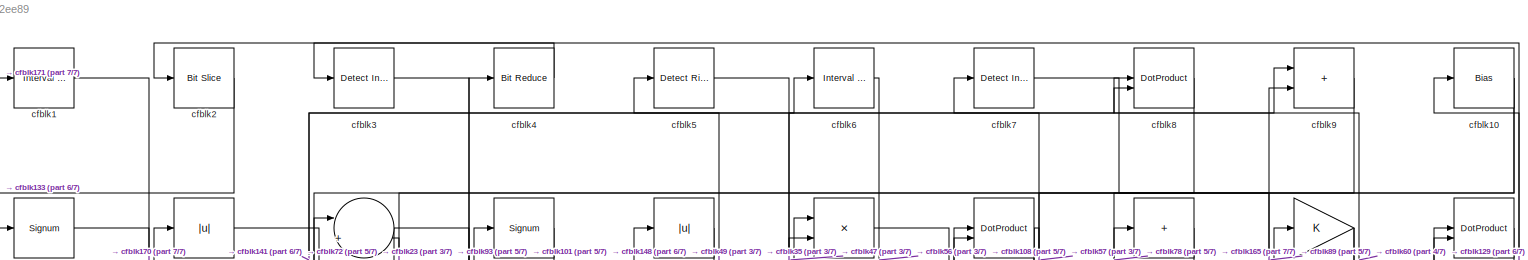
[diagram: root canvas - part 1/7, full width, top band]
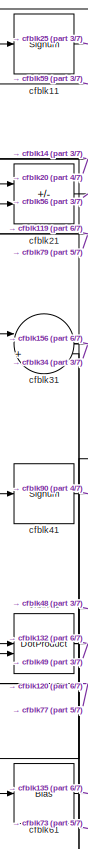
[diagram: root canvas - part 2/7, top left region]
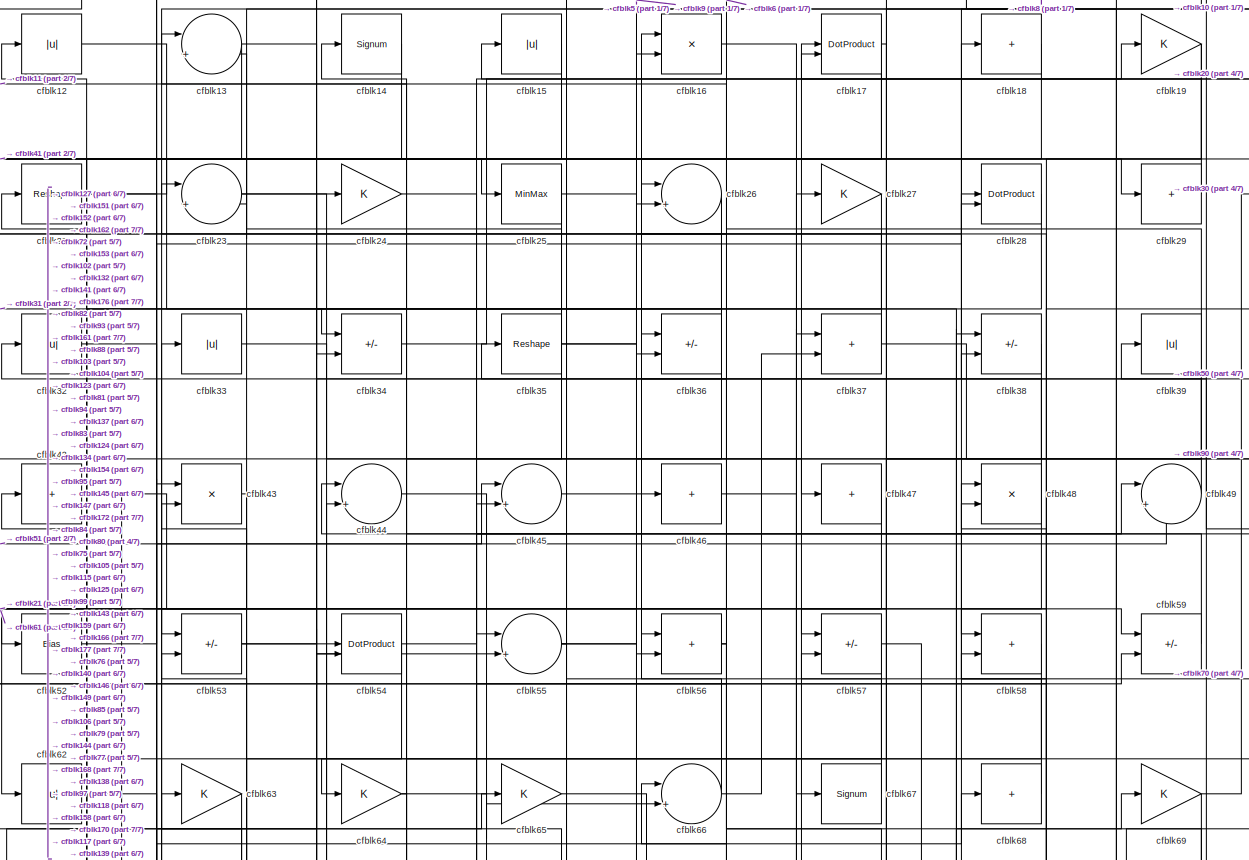
[diagram: root canvas - part 3/7, full width, top band]
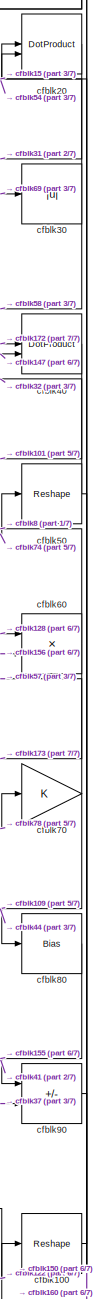
[diagram: root canvas - part 4/7, top right region]
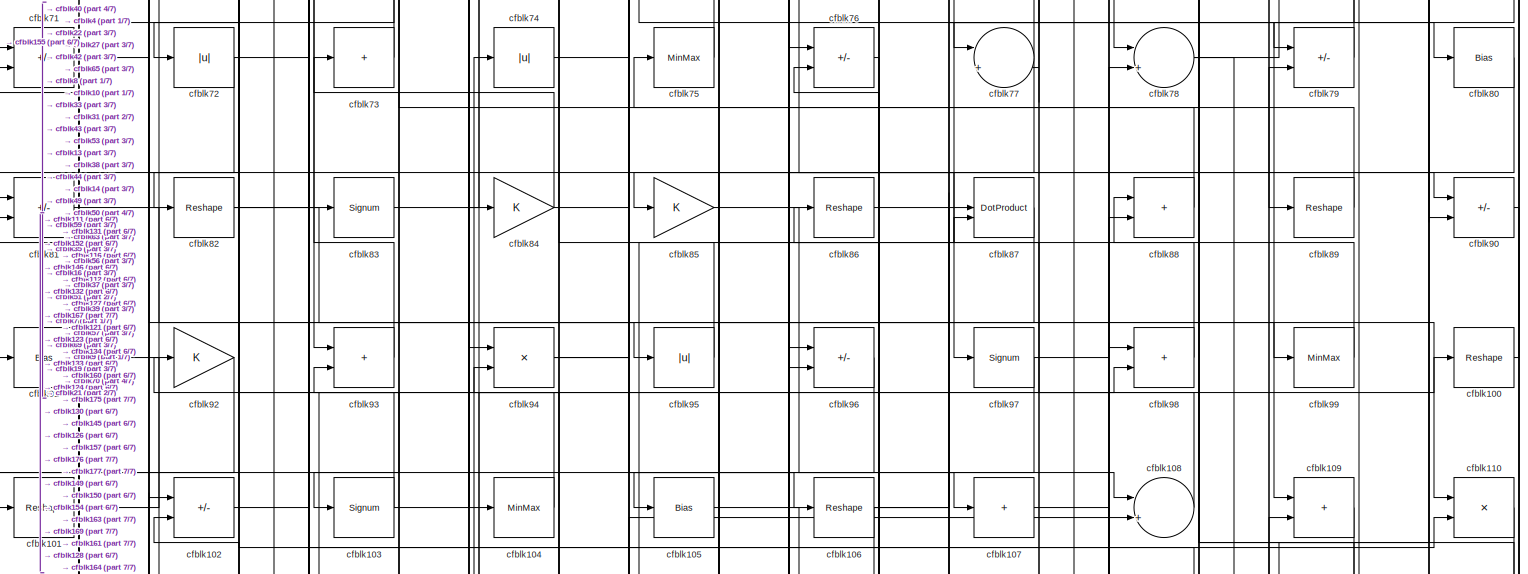
[diagram: root canvas - part 5/7, full width, middle band]
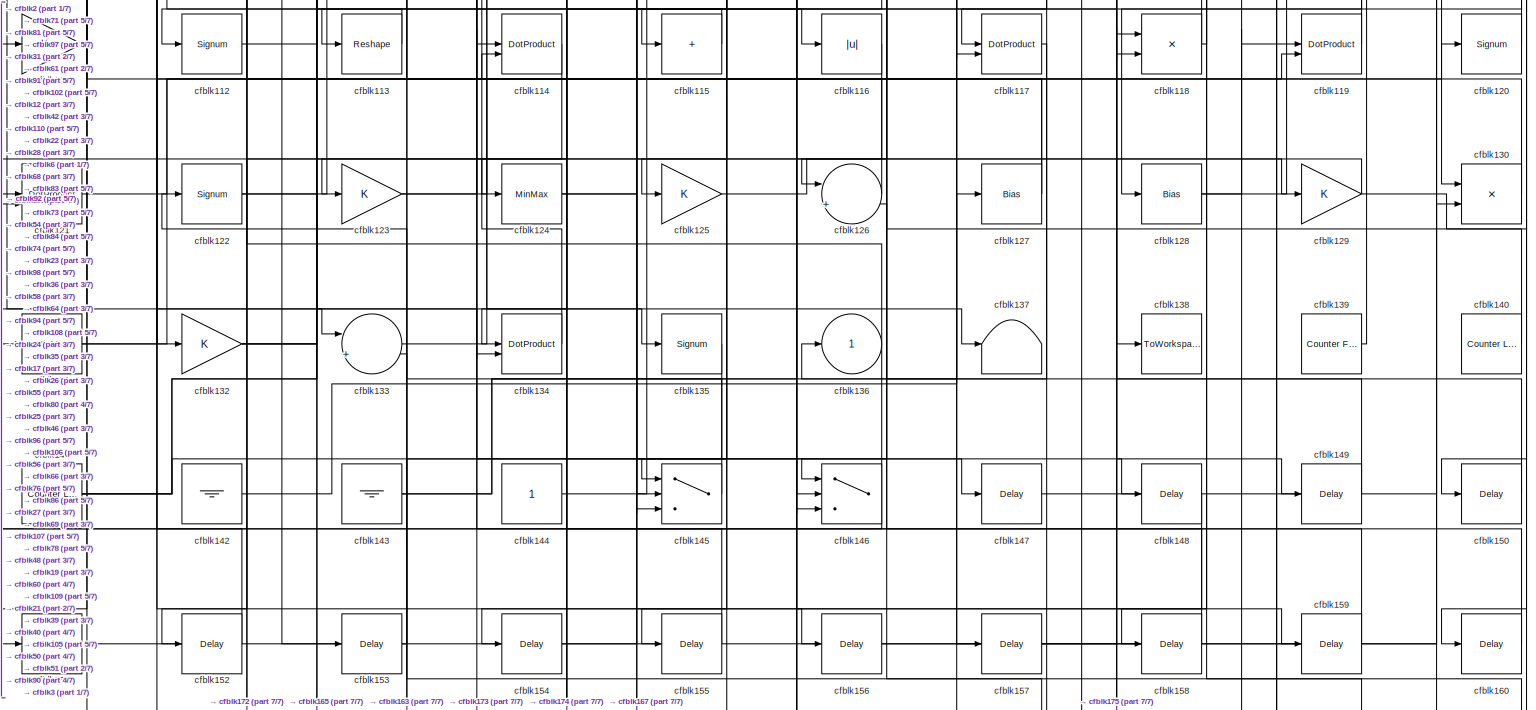
[diagram: root canvas - part 6/7, full width, bottom band]
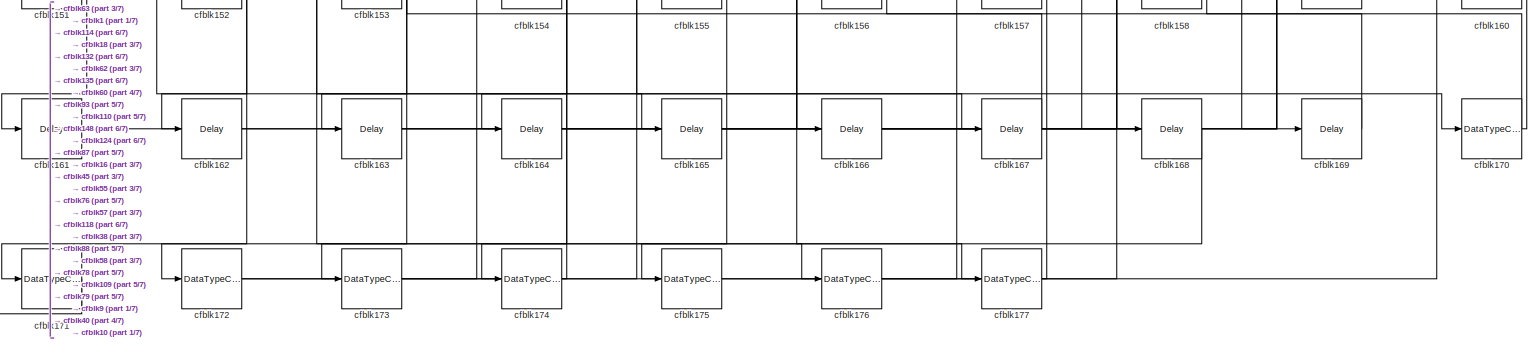
[diagram: root canvas - part 7/7, full width, bottom band]
MODEL slx_abfb5212ee89
KIND model
CONFIG AbsTol = auto
CONFIG EnableMultiTasking = off
CONFIG FixedStep = auto
CONFIG MaxStep = auto
CONFIG MinStep = auto
CONFIG RelTol = 1e-3
CONFIG SampleTimeConstraint = Unconstrained
CONFIG SolverName = VariableStepAuto
CONFIG StartTime = 0.0
CONFIG StopTime = 10.0
BLOCK [Reference] cfblk1  REF=hdlsllib/Logic and Bit
Operations/Interval Test
  SourceBlock = hdlsllib/Logic and Bit\nOperations/Interval Test
  SourceType = Interval Test
BLOCK [Bias] cfblk10
  Bias = 0.0
  SaturateOnIntegerOverflow = off
BLOCK [Reshape] cfblk100
BLOCK [Reshape] cfblk101
BLOCK [Sum] cfblk102
  IconShape = rectangular
  Inputs = +-
BLOCK [Signum] cfblk103
BLOCK [MinMax] cfblk104
BLOCK [Bias] cfblk105
  Bias = 0.0
  SaturateOnIntegerOverflow = off
BLOCK [Reshape] cfblk106
BLOCK [Sum] cfblk107
  IconShape = rectangular
  Inputs = +
BLOCK [Sum] cfblk108
  Inputs = |++
BLOCK [Sum] cfblk109
  IconShape = rectangular
BLOCK [Signum] cfblk11
BLOCK [Product] cfblk110
  Inputs = */
  RndMeth = Zero
  SaturateOnIntegerOverflow = on
BLOCK [Gain] cfblk111
BLOCK [Signum] cfblk112
BLOCK [Reshape] cfblk113
BLOCK [DotProduct] cfblk114
  OutDataTypeStr = Inherit: Inherit via internal rule
BLOCK [Sum] cfblk115
  IconShape = rectangular
  Inputs = +
BLOCK [Abs] cfblk116
  SaturateOnIntegerOverflow = off
BLOCK [DotProduct] cfblk117
  OutDataTypeStr = Inherit: Inherit via internal rule
BLOCK [Product] cfblk118
  Inputs = */
  RndMeth = Zero
  SaturateOnIntegerOverflow = on
BLOCK [DotProduct] cfblk119
  OutDataTypeStr = Inherit: Inherit via internal rule
BLOCK [Abs] cfblk12
  SaturateOnIntegerOverflow = off
BLOCK [Signum] cfblk120
BLOCK [DotProduct] cfblk121
  OutDataTypeStr = Inherit: Inherit via internal rule
BLOCK [Signum] cfblk122
BLOCK [Gain] cfblk123
BLOCK [MinMax] cfblk124
BLOCK [Gain] cfblk125
BLOCK [Sum] cfblk126
  Inputs = |++
BLOCK [Bias] cfblk127
  Bias = 0.0
  SaturateOnIntegerOverflow = off
BLOCK [Bias] cfblk128
  Bias = 0.0
  SaturateOnIntegerOverflow = off
BLOCK [Gain] cfblk129
BLOCK [Sum] cfblk13
  Inputs = |++
BLOCK [Product] cfblk130
  Inputs = */
  RndMeth = Zero
  SaturateOnIntegerOverflow = on
BLOCK [MinMax] cfblk131
BLOCK [Gain] cfblk132
BLOCK [Sum] cfblk133
  Inputs = |++
BLOCK [DotProduct] cfblk134
  OutDataTypeStr = Inherit: Inherit via internal rule
BLOCK [Signum] cfblk135
BLOCK [Outport] cfblk136
  VectorParamsAs1DForOutWhenUnconnected = off
BLOCK [Terminator] cfblk137
BLOCK [ToWorkspace] cfblk138
  MaxDataPoints = inf
  SampleTime = -1
  SaveFormat = Timeseries
  VariableName = simout
BLOCK [Reference] cfblk139  REF=hdlsllib/Sources/Counter
Free-Running
  SourceBlock = hdlsllib/Sources/Counter\nFree-Running
  SourceType = Counter Free-Running
BLOCK [Signum] cfblk14
BLOCK [Reference] cfblk140  REF=hdlsllib/Sources/Counter
Limited
  SourceBlock = hdlsllib/Sources/Counter\nLimited
  SourceType = Counter Limited
BLOCK [Reference] cfblk141  REF=hdlsllib/Sources/Counter
Limited
  SourceBlock = hdlsllib/Sources/Counter\nLimited
  SourceType = Counter Limited
BLOCK [Ground] cfblk142
BLOCK [Ground] cfblk143
BLOCK [Constant] cfblk144
  SampleTime = -1
BLOCK [Switch] cfblk145
  InputSameDT = off
  SaturateOnIntegerOverflow = off
BLOCK [Switch] cfblk146
  InputSameDT = off
  SaturateOnIntegerOverflow = off
BLOCK [Delay] cfblk147
  InputPortMap = u0
  SampleTime = 1
BLOCK [Delay] cfblk148
  InputPortMap = u0
  SampleTime = 1
BLOCK [Delay] cfblk149
  InputPortMap = u0
  SampleTime = 1
BLOCK [Abs] cfblk15
  SaturateOnIntegerOverflow = off
BLOCK [Delay] cfblk150
  InputPortMap = u0
  SampleTime = 1
BLOCK [Delay] cfblk151
  InputPortMap = u0
  SampleTime = 1
BLOCK [Delay] cfblk152
  InputPortMap = u0
  SampleTime = 1
BLOCK [Delay] cfblk153
  InputPortMap = u0
  SampleTime = 1
BLOCK [Delay] cfblk154
  InputPortMap = u0
  SampleTime = 1
BLOCK [Delay] cfblk155
  InputPortMap = u0
  SampleTime = 1
BLOCK [Delay] cfblk156
  InputPortMap = u0
  SampleTime = 1
BLOCK [Delay] cfblk157
  InputPortMap = u0
  SampleTime = 1
BLOCK [Delay] cfblk158
  InputPortMap = u0
  SampleTime = 1
BLOCK [Delay] cfblk159
  InputPortMap = u0
  SampleTime = 1
BLOCK [Product] cfblk16
  Inputs = */
  RndMeth = Zero
  SaturateOnIntegerOverflow = on
BLOCK [Delay] cfblk160
  InputPortMap = u0
  SampleTime = 1
BLOCK [Delay] cfblk161
  InputPortMap = u0
  SampleTime = 1
BLOCK [Delay] cfblk162
  InputPortMap = u0
  SampleTime = 1
BLOCK [Delay] cfblk163
  InputPortMap = u0
  SampleTime = 1
BLOCK [Delay] cfblk164
  InputPortMap = u0
  SampleTime = 1
BLOCK [Delay] cfblk165
  InputPortMap = u0
  SampleTime = 1
BLOCK [Delay] cfblk166
  InputPortMap = u0
  SampleTime = 1
BLOCK [Delay] cfblk167
  InputPortMap = u0
  SampleTime = 1
BLOCK [Delay] cfblk168
  InputPortMap = u0
  SampleTime = 1
BLOCK [Delay] cfblk169
  InputPortMap = u0
  SampleTime = 1
BLOCK [DotProduct] cfblk17
  OutDataTypeStr = Inherit: Inherit via internal rule
BLOCK [DataTypeConversion] cfblk170
  RndMeth = Floor
  SaturateOnIntegerOverflow = off
BLOCK [DataTypeConversion] cfblk171
  OutDataTypeStr = uint8
  RndMeth = Floor
  SaturateOnIntegerOverflow = off
BLOCK [DataTypeConversion] cfblk172
  RndMeth = Floor
  SaturateOnIntegerOverflow = off
BLOCK [DataTypeConversion] cfblk173
  OutDataTypeStr = uint8
  RndMeth = Floor
  SaturateOnIntegerOverflow = off
BLOCK [DataTypeConversion] cfblk174
  OutDataTypeStr = uint8
  RndMeth = Floor
  SaturateOnIntegerOverflow = off
BLOCK [DataTypeConversion] cfblk175
  OutDataTypeStr = uint8
  RndMeth = Floor
  SaturateOnIntegerOverflow = off
BLOCK [DataTypeConversion] cfblk176
  OutDataTypeStr = uint8
  RndMeth = Floor
  SaturateOnIntegerOverflow = off
BLOCK [DataTypeConversion] cfblk177
  OutDataTypeStr = uint8
  RndMeth = Floor
  SaturateOnIntegerOverflow = off
BLOCK [Sum] cfblk18
  IconShape = rectangular
  Inputs = +
BLOCK [Gain] cfblk19
BLOCK [Reference] cfblk2  REF=hdlsllib/Logic and Bit
Operations/Bit Slice
  SourceBlock = hdlsllib/Logic and Bit\nOperations/Bit Slice
  SourceType = Bit Slice
BLOCK [DotProduct] cfblk20
  OutDataTypeStr = Inherit: Inherit via internal rule
BLOCK [Sum] cfblk21
  IconShape = rectangular
  Inputs = +-
BLOCK [Reshape] cfblk22
BLOCK [Sum] cfblk23
  Inputs = |++
BLOCK [Gain] cfblk24
BLOCK [MinMax] cfblk25
BLOCK [Sum] cfblk26
  Inputs = |++
BLOCK [Gain] cfblk27
BLOCK [DotProduct] cfblk28
  OutDataTypeStr = Inherit: Inherit via internal rule
BLOCK [Sum] cfblk29
  IconShape = rectangular
  Inputs = +
BLOCK [Reference] cfblk3  REF=simulink/Logic and Bit
Operations/Detect
Increase
  LibrarySourceBlock = hdlsllib/Logic and Bit\nOperations/Detect\nIncrease
  SourceBlock = simulink/Logic and Bit\nOperations/Detect\nIncrease
  SourceType = Detect Increase
BLOCK [Abs] cfblk30
  SaturateOnIntegerOverflow = off
BLOCK [Sum] cfblk31
  Inputs = |++
BLOCK [Abs] cfblk32
  SaturateOnIntegerOverflow = off
BLOCK [Abs] cfblk33
  SaturateOnIntegerOverflow = off
BLOCK [Sum] cfblk34
  IconShape = rectangular
  Inputs = +-
BLOCK [Reshape] cfblk35
BLOCK [Sum] cfblk36
  IconShape = rectangular
  Inputs = +-
BLOCK [Sum] cfblk37
  IconShape = rectangular
BLOCK [Sum] cfblk38
  IconShape = rectangular
  Inputs = +-
BLOCK [Abs] cfblk39
  SaturateOnIntegerOverflow = off
BLOCK [Reference] cfblk4  REF=hdlsllib/Logic and Bit
Operations/Bit Reduce
  SourceBlock = hdlsllib/Logic and Bit\nOperations/Bit Reduce
  SourceType = Bit Reduce
BLOCK [DotProduct] cfblk40
  OutDataTypeStr = Inherit: Inherit via internal rule
BLOCK [Signum] cfblk41
BLOCK [Sum] cfblk42
  IconShape = rectangular
  Inputs = +
BLOCK [Product] cfblk43
  Inputs = */
  RndMeth = Zero
  SaturateOnIntegerOverflow = on
BLOCK [Sum] cfblk44
  Inputs = |++
BLOCK [Sum] cfblk45
  Inputs = |++
BLOCK [Sum] cfblk46
  IconShape = rectangular
  Inputs = +
BLOCK [Sum] cfblk47
  IconShape = rectangular
  Inputs = +
BLOCK [Product] cfblk48
  Inputs = */
  RndMeth = Zero
  SaturateOnIntegerOverflow = on
BLOCK [Sum] cfblk49
  Inputs = |++
BLOCK [Reference] cfblk5  REF=hdlsllib/Logic and Bit
Operations/Detect Rise
Nonnegative
  SourceBlock = hdlsllib/Logic and Bit\nOperations/Detect Rise\nNonnegative
  SourceType = Detect Rise Nonnegative
BLOCK [Reshape] cfblk50
BLOCK [DotProduct] cfblk51
  OutDataTypeStr = Inherit: Inherit via internal rule
BLOCK [Bias] cfblk52
  Bias = 0.0
  SaturateOnIntegerOverflow = off
BLOCK [Sum] cfblk53
  IconShape = rectangular
  Inputs = +-
BLOCK [DotProduct] cfblk54
  OutDataTypeStr = Inherit: Inherit via internal rule
BLOCK [Sum] cfblk55
  Inputs = |++
BLOCK [Sum] cfblk56
  IconShape = rectangular
BLOCK [Sum] cfblk57
  IconShape = rectangular
  Inputs = +-
BLOCK [Sum] cfblk58
  IconShape = rectangular
BLOCK [Sum] cfblk59
  IconShape = rectangular
  Inputs = +-
BLOCK [Reference] cfblk6  REF=hdlsllib/Logic and Bit
Operations/Interval Test
  SourceBlock = hdlsllib/Logic and Bit\nOperations/Interval Test
  SourceType = Interval Test
BLOCK [Product] cfblk60
  Inputs = */
  RndMeth = Zero
  SaturateOnIntegerOverflow = on
BLOCK [Bias] cfblk61
  Bias = 0.0
  SaturateOnIntegerOverflow = off
BLOCK [Abs] cfblk62
  SaturateOnIntegerOverflow = off
BLOCK [Gain] cfblk63
BLOCK [Gain] cfblk64
BLOCK [Gain] cfblk65
BLOCK [Sum] cfblk66
  Inputs = |++
BLOCK [Signum] cfblk67
BLOCK [Sum] cfblk68
  IconShape = rectangular
  Inputs = +
BLOCK [Gain] cfblk69
BLOCK [Reference] cfblk7  REF=simulink/Logic and Bit
Operations/Detect
Increase
  LibrarySourceBlock = hdlsllib/Logic and Bit\nOperations/Detect\nIncrease
  SourceBlock = simulink/Logic and Bit\nOperations/Detect\nIncrease
  SourceType = Detect Increase
BLOCK [Gain] cfblk70
BLOCK [Sum] cfblk71
  IconShape = rectangular
  Inputs = +-
BLOCK [Abs] cfblk72
  SaturateOnIntegerOverflow = off
BLOCK [Sum] cfblk73
  IconShape = rectangular
  Inputs = +
BLOCK [Abs] cfblk74
  SaturateOnIntegerOverflow = off
BLOCK [MinMax] cfblk75
BLOCK [Sum] cfblk76
  IconShape = rectangular
  Inputs = +-
BLOCK [Sum] cfblk77
  Inputs = |++
BLOCK [Sum] cfblk78
  Inputs = |++
BLOCK [Sum] cfblk79
  IconShape = rectangular
  Inputs = +-
BLOCK [DotProduct] cfblk8
  OutDataTypeStr = Inherit: Inherit via internal rule
BLOCK [Bias] cfblk80
  Bias = 0.0
  SaturateOnIntegerOverflow = off
BLOCK [Sum] cfblk81
  IconShape = rectangular
  Inputs = +-
BLOCK [Reshape] cfblk82
BLOCK [Signum] cfblk83
BLOCK [Gain] cfblk84
BLOCK [Gain] cfblk85
BLOCK [Reshape] cfblk86
BLOCK [DotProduct] cfblk87
  OutDataTypeStr = Inherit: Inherit via internal rule
BLOCK [Sum] cfblk88
  IconShape = rectangular
BLOCK [Reshape] cfblk89
BLOCK [Sum] cfblk9
  IconShape = rectangular
BLOCK [Sum] cfblk90
  IconShape = rectangular
  Inputs = +-
BLOCK [Bias] cfblk91
  Bias = 0.0
  SaturateOnIntegerOverflow = off
BLOCK [Gain] cfblk92
BLOCK [Sum] cfblk93
  IconShape = rectangular
BLOCK [Product] cfblk94
  Inputs = */
  RndMeth = Zero
  SaturateOnIntegerOverflow = on
BLOCK [Abs] cfblk95
  SaturateOnIntegerOverflow = off
BLOCK [Sum] cfblk96
  IconShape = rectangular
  Inputs = +-
BLOCK [Signum] cfblk97
BLOCK [Sum] cfblk98
  IconShape = rectangular
BLOCK [MinMax] cfblk99
LINE cfblk100:1 -> cfblk20:1
LINE cfblk101:1 -> cfblk4:1
LINE cfblk102:1 -> cfblk43:1
NET cfblk103:1 -> cfblk22:1, cfblk38:2
LINE cfblk104:1 -> cfblk92:1
LINE cfblk105:1 -> cfblk130:1
NET cfblk106:1 -> cfblk108:1, cfblk145:2, cfblk37:1
LINE cfblk107:1 -> cfblk149:1
LINE cfblk108:1 -> cfblk7:1
LINE cfblk109:1 -> cfblk128:1
NET cfblk10:1 -> cfblk23:2, cfblk93:1
LINE cfblk110:1 -> cfblk164:1
LINE cfblk111:1 -> cfblk81:1
LINE cfblk112:1 -> cfblk83:1
LINE cfblk113:1 -> cfblk112:1
LINE cfblk114:1 -> cfblk172:1
LINE cfblk115:1 -> cfblk113:1
LINE cfblk116:1 -> cfblk121:1
LINE cfblk117:1 -> cfblk136:1
NET cfblk118:1 -> cfblk42:1, cfblk48:2
LINE cfblk119:1 -> cfblk21:2
LINE cfblk11:1 -> cfblk25:1
LINE cfblk120:1 -> cfblk51:1
LINE cfblk121:1 -> cfblk84:1
NET cfblk122:1 -> cfblk100:1, cfblk134:2
NET cfblk123:1 -> cfblk54:2, cfblk96:1
NET cfblk124:1 -> cfblk108:2, cfblk167:1
LINE cfblk125:1 -> cfblk129:1
LINE cfblk126:1 -> cfblk71:2
NET cfblk127:1 -> cfblk12:1, cfblk73:1
NET cfblk128:1 -> cfblk119:1, cfblk60:1
NET cfblk129:1 -> cfblk123:1, cfblk3:1
LINE cfblk12:1 -> cfblk138:1
LINE cfblk130:1 -> cfblk86:1
NET cfblk131:1 -> cfblk119:2, cfblk120:1
NET cfblk132:1 -> cfblk110:2, cfblk165:1, cfblk28:1
LINE cfblk133:1 -> cfblk98:2
LINE cfblk134:1 -> cfblk74:1
LINE cfblk135:1 -> cfblk163:1
LINE cfblk139:1 -> cfblk39:1
NET cfblk13:1 -> cfblk104:1, cfblk81:2
LINE cfblk140:1 -> cfblk36:1
NET cfblk141:1 -> cfblk146:2, cfblk68:1, cfblk6:1
LINE cfblk142:1 -> cfblk127:1
NET cfblk143:1 -> cfblk27:1, cfblk46:1
LINE cfblk144:1 -> cfblk17:1
LINE cfblk145:1 -> cfblk122:1
NET cfblk146:1 -> cfblk102:2, cfblk111:1
LINE cfblk147:1 -> cfblk40:2
LINE cfblk148:1 -> cfblk174:1
LINE cfblk149:1 -> cfblk66:1
LINE cfblk14:1 -> cfblk41:1
LINE cfblk150:1 -> cfblk98:1
LINE cfblk151:1 -> cfblk55:1
LINE cfblk152:1 -> cfblk102:1
LINE cfblk153:1 -> cfblk133:2
LINE cfblk154:1 -> cfblk78:2
LINE cfblk155:1 -> cfblk71:1
LINE cfblk156:1 -> cfblk60:2
LINE cfblk157:1 -> cfblk130:2
LINE cfblk158:1 -> cfblk126:2
LINE cfblk159:1 -> cfblk54:1
LINE cfblk15:1 -> cfblk53:1
LINE cfblk160:1 -> cfblk94:2
LINE cfblk161:1 -> cfblk79:2
LINE cfblk162:1 -> cfblk16:2
LINE cfblk163:1 -> cfblk88:2
LINE cfblk164:1 -> cfblk109:2
LINE cfblk165:1 -> cfblk9:2
LINE cfblk166:1 -> cfblk38:1
LINE cfblk167:1 -> cfblk93:2
LINE cfblk168:1 -> cfblk171:1
LINE cfblk169:1 -> cfblk76:2
LINE cfblk16:1 -> cfblk79:1
NET cfblk170:1 -> cfblk10:1, cfblk58:2
LINE cfblk171:1 -> cfblk1:1
NET cfblk172:1 -> cfblk40:1, cfblk45:2
LINE cfblk173:1 -> cfblk114:1
LINE cfblk174:1 -> cfblk114:2
LINE cfblk175:1 -> cfblk118:1
LINE cfblk176:1 -> cfblk87:1
LINE cfblk177:1 -> cfblk87:2
NET cfblk17:1 -> cfblk117:1, cfblk151:1, cfblk152:1
LINE cfblk18:1 -> cfblk162:1
NET cfblk19:1 -> cfblk105:1, cfblk158:1
LINE cfblk1:1 -> cfblk170:1
LINE cfblk20:1 -> cfblk31:1
LINE cfblk21:1 -> cfblk56:2
NET cfblk22:1 -> cfblk118:2, cfblk29:1
NET cfblk23:1 -> cfblk137:1, cfblk36:2
LINE cfblk24:1 -> cfblk147:1
NET cfblk25:1 -> cfblk159:1, cfblk34:2
LINE cfblk26:1 -> cfblk115:1
LINE cfblk27:1 -> cfblk72:1
LINE cfblk28:1 -> cfblk52:1
LINE cfblk29:1 -> cfblk17:2
LINE cfblk2:1 -> cfblk133:1
NET cfblk30:1 -> cfblk15:1, cfblk58:1
NET cfblk31:1 -> cfblk156:1, cfblk34:1
LINE cfblk32:1 -> cfblk59:1
LINE cfblk33:1 -> cfblk76:1
LINE cfblk34:1 -> cfblk19:1
NET cfblk35:1 -> cfblk13:2, cfblk145:3, cfblk28:2, cfblk9:1
NET cfblk36:1 -> cfblk154:1, cfblk26:1
NET cfblk37:1 -> cfblk23:1, cfblk90:2
LINE cfblk38:1 -> cfblk77:2
NET cfblk39:1 -> cfblk13:1, cfblk146:3, cfblk77:1
LINE cfblk3:1 -> cfblk148:1
LINE cfblk40:1 -> cfblk101:1
LINE cfblk41:1 -> cfblk90:1
NET cfblk42:1 -> cfblk153:1, cfblk94:1
LINE cfblk43:1 -> cfblk103:1
LINE cfblk44:1 -> cfblk80:1
LINE cfblk45:1 -> cfblk166:1
LINE cfblk46:1 -> cfblk67:1
LINE cfblk47:1 -> cfblk62:1
NET cfblk48:1 -> cfblk18:1, cfblk61:1
LINE cfblk49:1 -> cfblk5:1
LINE cfblk4:1 -> cfblk2:1
NET cfblk50:1 -> cfblk160:1, cfblk32:1
NET cfblk51:1 -> cfblk132:1, cfblk49:2
LINE cfblk52:1 -> cfblk45:1
NET cfblk53:1 -> cfblk24:1, cfblk55:2
NET cfblk54:1 -> cfblk20:2, cfblk64:1
NET cfblk55:1 -> cfblk125:1, cfblk177:1, cfblk26:2
NET cfblk56:1 -> cfblk146:1, cfblk85:1
NET cfblk57:1 -> cfblk168:1, cfblk82:1
LINE cfblk58:1 -> cfblk134:1
LINE cfblk59:1 -> cfblk11:1
LINE cfblk5:1 -> cfblk47:1
NET cfblk60:1 -> cfblk173:1, cfblk8:2
LINE cfblk61:1 -> cfblk135:1
LINE cfblk62:1 -> cfblk176:1
LINE cfblk63:1 -> cfblk161:1
NET cfblk64:1 -> cfblk124:1, cfblk66:2
LINE cfblk65:1 -> cfblk97:1
NET cfblk66:1 -> cfblk16:1, cfblk37:2
LINE cfblk67:1 -> cfblk44:1
LINE cfblk68:1 -> cfblk48:1
NET cfblk69:1 -> cfblk117:2, cfblk30:1
LINE cfblk6:1 -> cfblk56:1
NET cfblk70:1 -> cfblk109:1, cfblk57:2
LINE cfblk71:1 -> cfblk99:1
NET cfblk72:1 -> cfblk8:1, cfblk91:1
LINE cfblk73:1 -> cfblk31:2
LINE cfblk74:1 -> cfblk50:1
LINE cfblk75:1 -> cfblk63:1
LINE cfblk76:1 -> cfblk126:1
NET cfblk77:1 -> cfblk51:2, cfblk96:2
NET cfblk78:1 -> cfblk169:1, cfblk70:1
LINE cfblk79:1 -> cfblk21:1
LINE cfblk7:1 -> cfblk89:1
LINE cfblk80:1 -> cfblk155:1
LINE cfblk81:1 -> cfblk95:1
NET cfblk82:1 -> cfblk110:1, cfblk65:1
LINE cfblk83:1 -> cfblk44:2
NET cfblk84:1 -> cfblk43:2, cfblk49:1
LINE cfblk85:1 -> cfblk107:1
LINE cfblk86:1 -> cfblk157:1
LINE cfblk87:1 -> cfblk175:1
LINE cfblk88:1 -> cfblk53:2
LINE cfblk89:1 -> cfblk75:1
LINE cfblk8:1 -> cfblk57:1
LINE cfblk90:1 -> cfblk150:1
LINE cfblk91:1 -> cfblk116:1
LINE cfblk92:1 -> cfblk121:2
LINE cfblk93:1 -> cfblk33:1
NET cfblk94:1 -> cfblk106:1, cfblk59:2
LINE cfblk95:1 -> cfblk14:1
LINE cfblk96:1 -> cfblk145:1
NET cfblk97:1 -> cfblk131:1, cfblk69:1
LINE cfblk98:1 -> cfblk88:1
LINE cfblk99:1 -> cfblk35:1
LINE cfblk9:1 -> cfblk78:1
note: NET lines group one-source signal fan-out (src -> all destinations, sorted); 1:1 wires keep LINE
